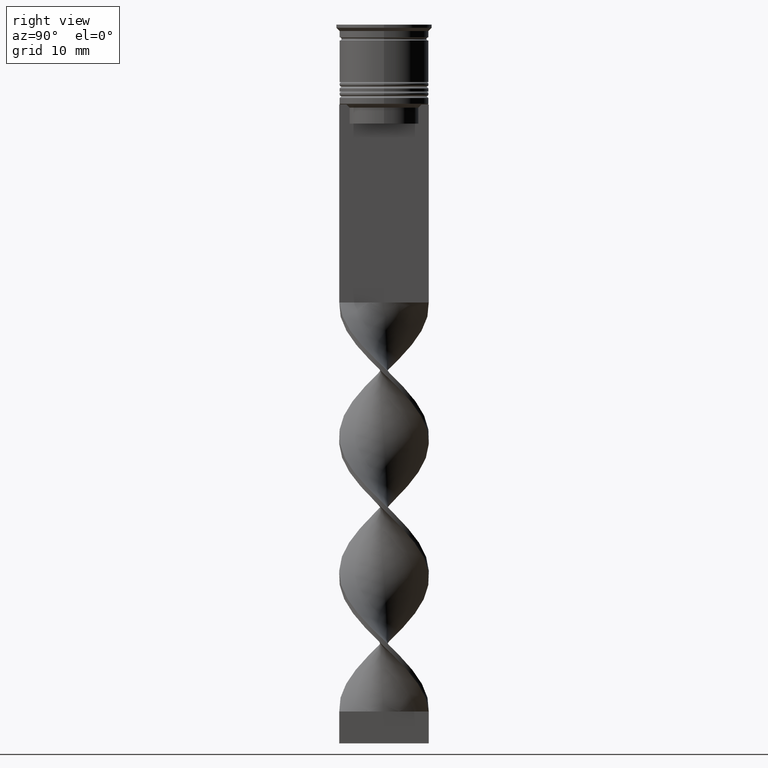
[diagram: clean part render]
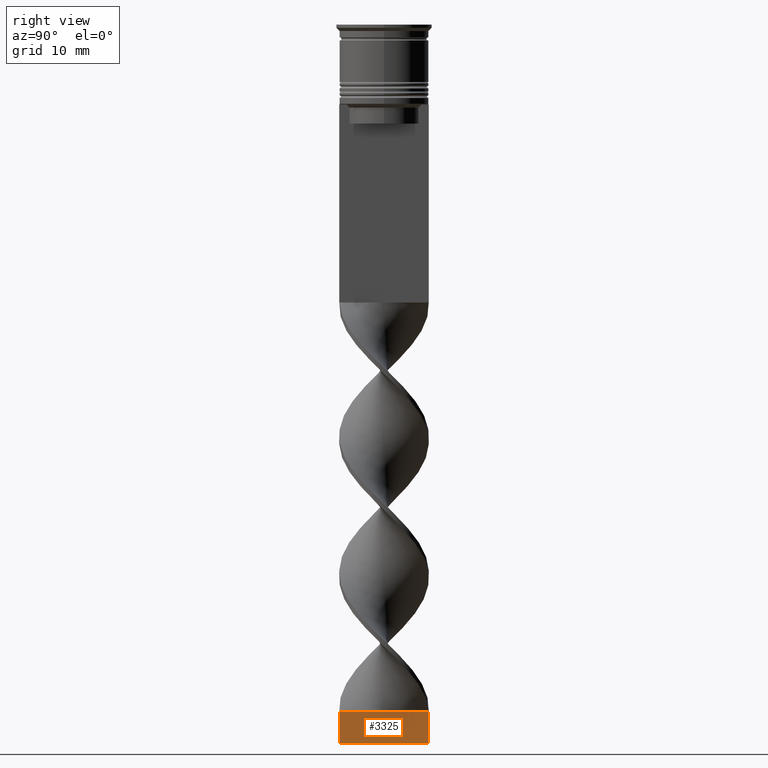
[diagram: same view with one face highlighted and labeled with its STEP entity id]
A machine part, right view. The second image highlights one B-rep face of the part: STEP entity #3325.
In plain terms, the highlighted planar face has unit normal (-1, 0, 0).
Its self-contained STEP definition (entity closure, byte-faithful):
#54 = VECTOR ( 'NONE', #998, 1000.000000000000000 ) ;
#161 = VERTEX_POINT ( 'NONE', #340 ) ;
#340 = CARTESIAN_POINT ( 'NONE',  ( 0.4999999999999991673, -7.000000000000002665, -112.5000000000000000 ) ) ;
#359 = EDGE_CURVE ( 'NONE', #3351, #580, #3216, .T. ) ;
#431 = CARTESIAN_POINT ( 'NONE',  ( 0.4999999999999991673, -7.000000000000002665, -107.5000000000000000 ) ) ;
#454 = CARTESIAN_POINT ( 'NONE',  ( 0.4999999999999991673, -7.000000000000002665, -112.5000000000000000 ) ) ;
#580 = VERTEX_POINT ( 'NONE', #2467 ) ;
#649 = CARTESIAN_POINT ( 'NONE',  ( 0.4999999999999996669, -2.333333333333336590, -107.5000000000000000 ) ) ;
#668 = CARTESIAN_POINT ( 'NONE',  ( 0.5000000000000008882, 6.999999999999997335, -107.5000000000000000 ) ) ;
#799 = EDGE_CURVE ( 'NONE', #161, #1906, #976, .T. ) ;
#876 = CARTESIAN_POINT ( 'NONE',  ( 0.5000000000000008882, 6.999999999999997335, -112.5000000000000000 ) ) ;
#929 = PLANE ( 'NONE',  #1941 ) ;
#976 = LINE ( 'NONE', #454, #1692 ) ;
#998 = DIRECTION ( 'NONE',  ( -0.000000000000000000, -0.000000000000000000, 1.000000000000000000 ) ) ;
#1139 = LINE ( 'NONE', #1773, #2522 ) ;
#1143 = FACE_OUTER_BOUND ( 'NONE', #1784, .T. ) ;
#1208 = B_SPLINE_CURVE_WITH_KNOTS ( 'NONE', 3,
 ( #668, #1802, #649, #1769 ),
 .UNSPECIFIED., .F., .F.,
 ( 4, 4 ),
 ( 0.000000000000000000, 1.000000000000000000 ),
 .UNSPECIFIED. ) ;
#1226 = ORIENTED_EDGE ( 'NONE', *, *, #799, .F. ) ;
#1283 = ORIENTED_EDGE ( 'NONE', *, *, #1584, .F. ) ;
#1382 = ORIENTED_EDGE ( 'NONE', *, *, #359, .T. ) ;
#1556 = CARTESIAN_POINT ( 'NONE',  ( 0.5000000000000008882, 6.999999999999997335, -112.5000000000000000 ) ) ;
#1584 = EDGE_CURVE ( 'NONE', #3351, #161, #1139, .T. ) ;
#1692 = VECTOR ( 'NONE', #3247, 1000.000000000000000 ) ;
#1728 = DIRECTION ( 'NONE',  ( -1.239088197126290817E-16, -1.000000000000000000, 0.000000000000000000 ) ) ;
#1769 = CARTESIAN_POINT ( 'NONE',  ( 0.4999999999999991673, -7.000000000000002665, -107.5000000000000000 ) ) ;
#1773 = CARTESIAN_POINT ( 'NONE',  ( 0.5000000000000008882, 6.999999999999997335, -112.5000000000000000 ) ) ;
#1784 = EDGE_LOOP ( 'NONE', ( #3215, #1226, #1283, #1382 ) ) ;
#1802 = CARTESIAN_POINT ( 'NONE',  ( 0.5000000000000003331, 2.333333333333331261, -107.5000000000000000 ) ) ;
#1906 = VERTEX_POINT ( 'NONE', #431 ) ;
#1941 = AXIS2_PLACEMENT_3D ( 'NONE', #876, #2308, #1728 ) ;
#2064 = DIRECTION ( 'NONE',  ( -1.239088197126290817E-16, -1.000000000000000000, 0.000000000000000000 ) ) ;
#2308 = DIRECTION ( 'NONE',  ( -1.000000000000000000, 1.239088197126290817E-16, 0.000000000000000000 ) ) ;
#2388 = EDGE_CURVE ( 'NONE', #580, #1906, #1208, .T. ) ;
#2467 = CARTESIAN_POINT ( 'NONE',  ( 0.5000000000000008882, 6.999999999999997335, -107.5000000000000000 ) ) ;
#2522 = VECTOR ( 'NONE', #2064, 1000.000000000000000 ) ;
#3147 = CARTESIAN_POINT ( 'NONE',  ( 0.5000000000000008882, 6.999999999999997335, -112.5000000000000000 ) ) ;
#3215 = ORIENTED_EDGE ( 'NONE', *, *, #2388, .T. ) ;
#3216 = LINE ( 'NONE', #1556, #54 ) ;
#3247 = DIRECTION ( 'NONE',  ( -0.000000000000000000, -0.000000000000000000, 1.000000000000000000 ) ) ;
#3325 = ADVANCED_FACE ( 'NONE', ( #1143 ), #929, .F. ) ;
#3351 = VERTEX_POINT ( 'NONE', #3147 ) ;